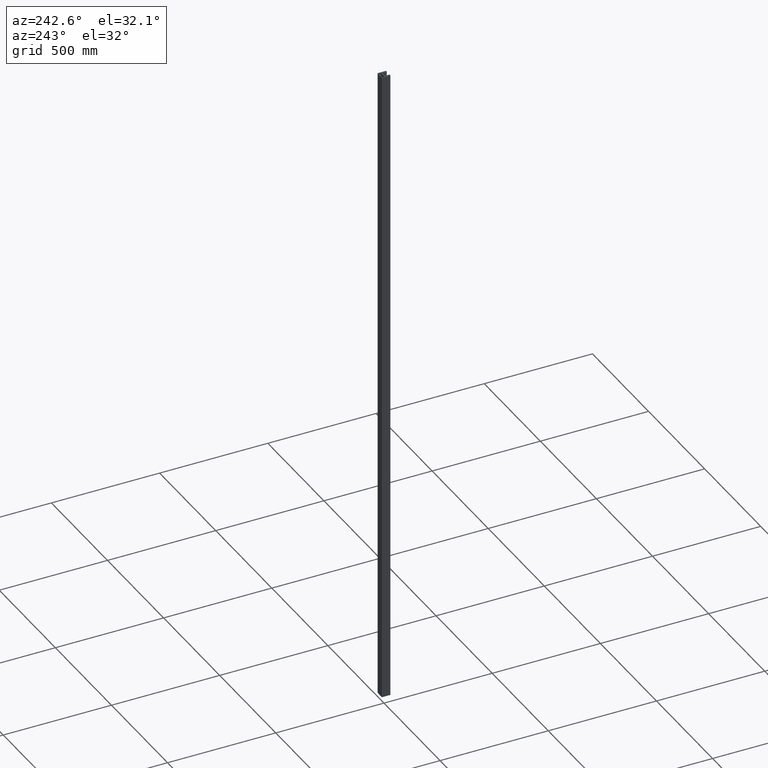
[diagram: clean part render]
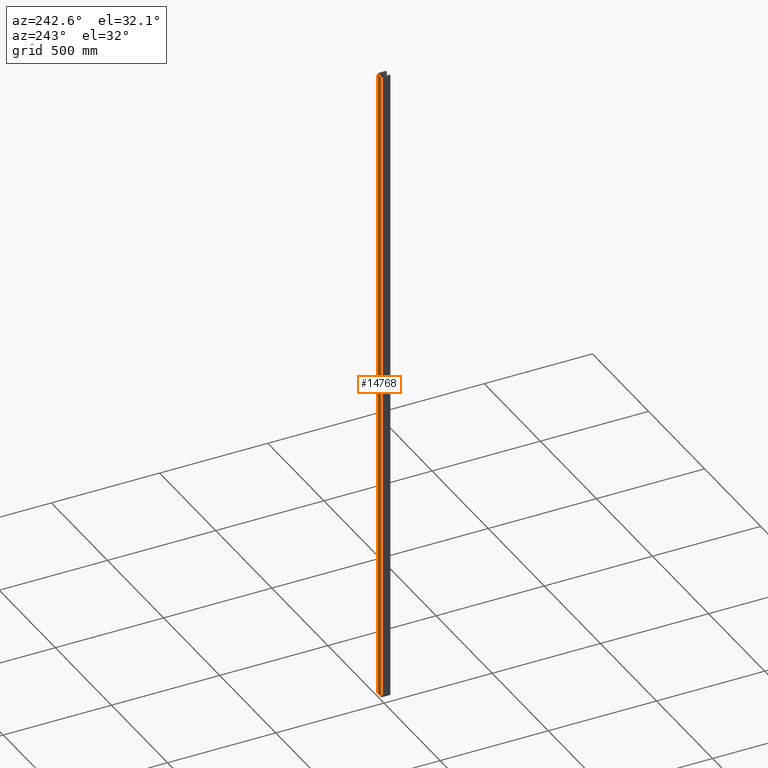
[diagram: same view with one face highlighted and labeled with its STEP entity id]
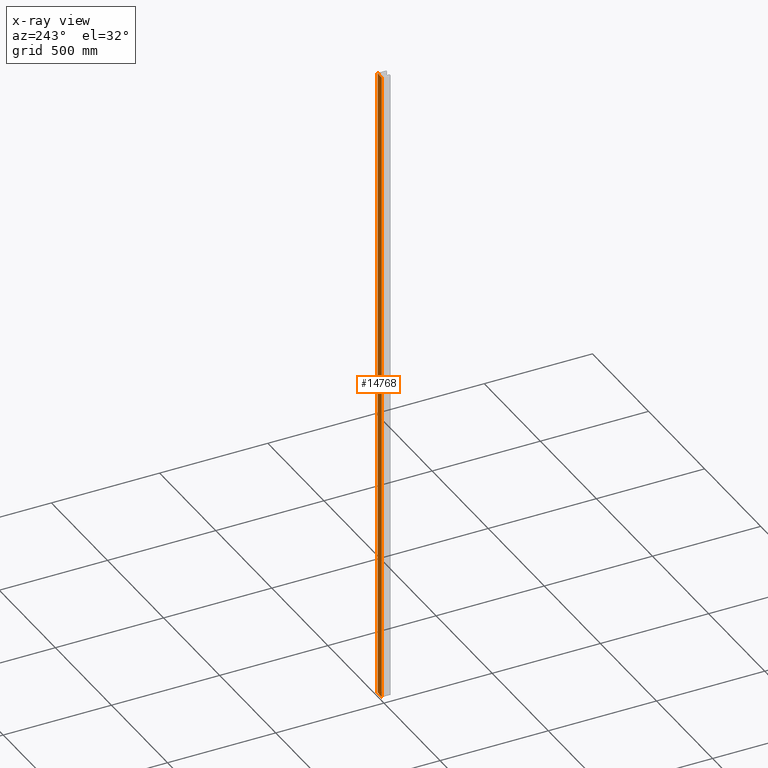
[diagram: x-ray of the same camera — body ghosted, the highlighted face saturated]
A machine part, auxiliary view. The second image highlights one B-rep face of the part: STEP entity #14768.
The next image is the same camera in x-ray: the body ghosted, the highlighted face saturated — about 0% of this face is hidden behind the body in this view.
In plain terms, the highlighted planar face has unit normal (0, -1, 0).
Its self-contained STEP definition (entity closure, byte-faithful):
#621 = VECTOR ( 'NONE', #12136, 1000.000000000000000 ) ;
#871 = EDGE_CURVE ( 'NONE', #11529, #10056, #13325, .T. ) ;
#1056 = EDGE_CURVE ( 'NONE', #9265, #8706, #10938, .T. ) ;
#1064 = AXIS2_PLACEMENT_3D ( 'NONE', #1186, #6137, #13587 ) ;
#1186 = CARTESIAN_POINT ( 'NONE',  ( -18.00000000000001066, 20.00000000000000355, 1500.000000000000000 ) ) ;
#2384 = DIRECTION ( 'NONE',  ( -1.000000000000000000, -0.000000000000000000, -0.000000000000000000 ) ) ;
#2391 = EDGE_LOOP ( 'NONE', ( #14604, #14782, #2823, #9919 ) ) ;
#2485 = VECTOR ( 'NONE', #9604, 1000.000000000000000 ) ;
#2823 = ORIENTED_EDGE ( 'NONE', *, *, #1056, .F. ) ;
#3553 = LINE ( 'NONE', #8687, #6134 ) ;
#4988 = EDGE_CURVE ( 'NONE', #9265, #11529, #3553, .T. ) ;
#5735 = CARTESIAN_POINT ( 'NONE',  ( -18.00000000000001066, 20.00000000000000355, -1500.000000000000000 ) ) ;
#6134 = VECTOR ( 'NONE', #8634, 1000.000000000000000 ) ;
#6137 = DIRECTION ( 'NONE',  ( 0.000000000000000000, -1.000000000000000000, 0.000000000000000000 ) ) ;
#6390 = FACE_OUTER_BOUND ( 'NONE', #2391, .T. ) ;
#7580 = EDGE_CURVE ( 'NONE', #8706, #10056, #14845, .T. ) ;
#8634 = DIRECTION ( 'NONE',  ( -0.000000000000000000, -0.000000000000000000, -1.000000000000000000 ) ) ;
#8687 = CARTESIAN_POINT ( 'NONE',  ( 17.99999999999999289, 20.00000000000000355, 1500.000000000000000 ) ) ;
#8706 = VERTEX_POINT ( 'NONE', #10887 ) ;
#9265 = VERTEX_POINT ( 'NONE', #10728 ) ;
#9604 = DIRECTION ( 'NONE',  ( -1.000000000000000000, -0.000000000000000000, -0.000000000000000000 ) ) ;
#9919 = ORIENTED_EDGE ( 'NONE', *, *, #4988, .T. ) ;
#10056 = VERTEX_POINT ( 'NONE', #11404 ) ;
#10728 = CARTESIAN_POINT ( 'NONE',  ( 17.99999999999999289, 20.00000000000000355, 1500.000000000000000 ) ) ;
#10887 = CARTESIAN_POINT ( 'NONE',  ( -18.00000000000001066, 20.00000000000000355, 1500.000000000000000 ) ) ;
#10938 = LINE ( 'NONE', #16191, #13103 ) ;
#11404 = CARTESIAN_POINT ( 'NONE',  ( -18.00000000000001066, 20.00000000000000355, -1500.000000000000000 ) ) ;
#11529 = VERTEX_POINT ( 'NONE', #12615 ) ;
#12136 = DIRECTION ( 'NONE',  ( -0.000000000000000000, -0.000000000000000000, -1.000000000000000000 ) ) ;
#12615 = CARTESIAN_POINT ( 'NONE',  ( 17.99999999999999289, 20.00000000000000355, -1500.000000000000000 ) ) ;
#13103 = VECTOR ( 'NONE', #2384, 1000.000000000000000 ) ;
#13325 = LINE ( 'NONE', #5735, #2485 ) ;
#13529 = CARTESIAN_POINT ( 'NONE',  ( -18.00000000000001066, 20.00000000000000355, 1500.000000000000000 ) ) ;
#13587 = DIRECTION ( 'NONE',  ( 0.000000000000000000, -0.000000000000000000, -1.000000000000000000 ) ) ;
#14604 = ORIENTED_EDGE ( 'NONE', *, *, #871, .T. ) ;
#14768 = ADVANCED_FACE ( 'NONE', ( #6390 ), #14991, .F. ) ;
#14782 = ORIENTED_EDGE ( 'NONE', *, *, #7580, .F. ) ;
#14845 = LINE ( 'NONE', #13529, #621 ) ;
#14991 = PLANE ( 'NONE',  #1064 ) ;
#16191 = CARTESIAN_POINT ( 'NONE',  ( -18.00000000000001066, 20.00000000000000355, 1500.000000000000000 ) ) ;